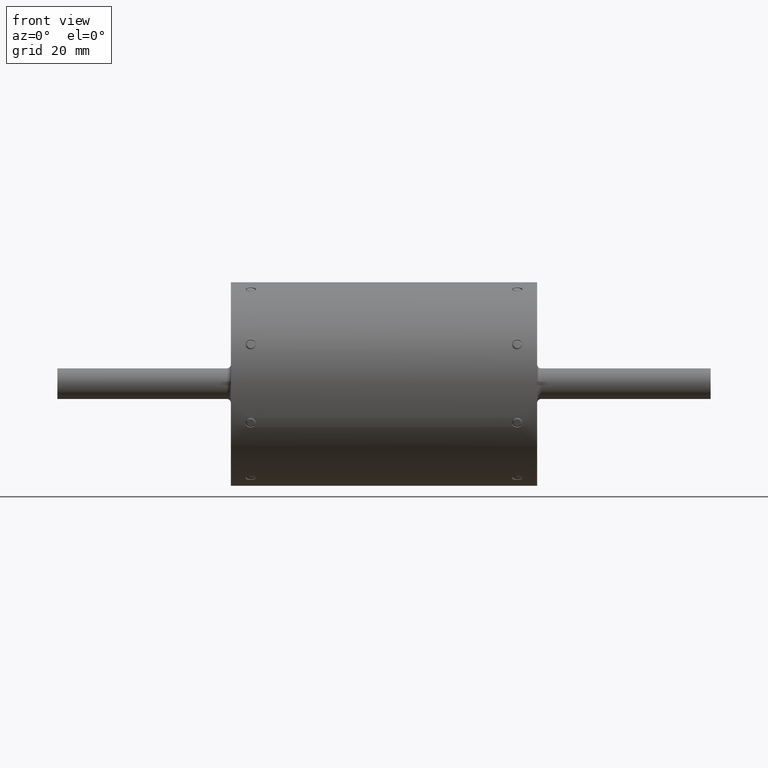
[diagram: clean part render]
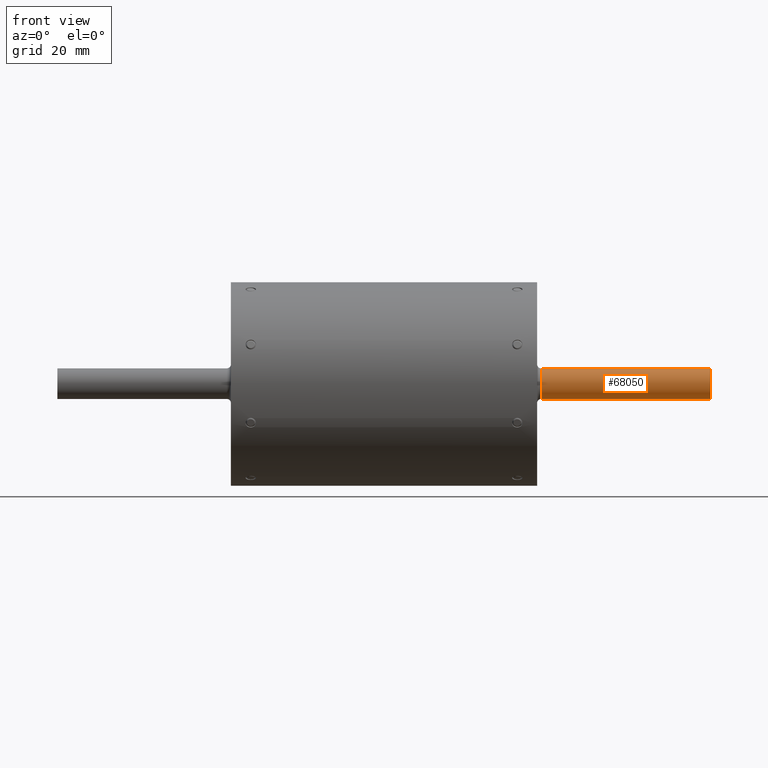
[diagram: same view with one face highlighted and labeled with its STEP entity id]
A machine part, front view. The second image highlights one B-rep face of the part: STEP entity #68050.
In plain terms, the highlighted cylindrical surface (edge-blend (fillet) strip) has radius 4.7625 mm, axis along (-1, -0, 0).
Its self-contained STEP definition (entity closure, byte-faithful):
#3465 = EDGE_CURVE ( 'NONE', #107281, #77818, #126179, .T. ) ;
#10051 = CARTESIAN_POINT ( 'NONE',  ( 3.800000000000000300, -0.8125000000000003300, 0.1874999999999384400 ) ) ;
#13008 = CARTESIAN_POINT ( 'NONE',  ( 3.800000000000000300, -0.8125000000000003300, -6.165011542038567300E-014 ) ) ;
#13610 = DIRECTION ( 'NONE',  ( 1.000000000000000000, 6.718675002655119100E-017, -1.023891520009880200E-016 ) ) ;
#15200 = VERTEX_POINT ( 'NONE', #99012 ) ;
#17283 = DIRECTION ( 'NONE',  ( 0.0000000000000000000, -1.000000000000000000, 0.0000000000000000000 ) ) ;
#18193 = CARTESIAN_POINT ( 'NONE',  ( 5.875000000000000000, -0.8125000000000001100, -0.1875000000000616500 ) ) ;
#31084 = VECTOR ( 'NONE', #95616, 39.37007874015748100 ) ;
#32317 = ORIENTED_EDGE ( 'NONE', *, *, #84460, .F. ) ;
#39329 = ORIENTED_EDGE ( 'NONE', *, *, #119446, .F. ) ;
#47327 = AXIS2_PLACEMENT_3D ( 'NONE', #13008, #13610, #17283 ) ;
#56110 = CARTESIAN_POINT ( 'NONE',  ( 3.800000000000000300, -0.8125000000000003300, -0.1875000000000615900 ) ) ;
#57678 = LINE ( 'NONE', #73028, #83145 ) ;
#60923 = DIRECTION ( 'NONE',  ( -1.000000000000000000, -6.718675002655119100E-017, 1.023891520009880200E-016 ) ) ;
#62835 = CARTESIAN_POINT ( 'NONE',  ( 5.875000000000000000, -0.8125000000000001100, -6.186257291078773100E-014 ) ) ;
#64041 = CYLINDRICAL_SURFACE ( 'NONE', #65917, 0.1874999999999999700 ) ;
#65917 = AXIS2_PLACEMENT_3D ( 'NONE', #104088, #60923, #126374 ) ;
#66465 = ORIENTED_EDGE ( 'NONE', *, *, #139652, .T. ) ;
#68050 = ADVANCED_FACE ( 'NONE', ( #77622 ), #64041, .T. ) ;
#70014 = AXIS2_PLACEMENT_3D ( 'NONE', #62835, #138612, #73764 ) ;
#73028 = CARTESIAN_POINT ( 'NONE',  ( 5.875000000000000000, -0.8125000000000001100, 0.1874999999999383800 ) ) ;
#73568 = CIRCLE ( 'NONE', #70014, 0.1874999999999999700 ) ;
#73764 = DIRECTION ( 'NONE',  ( 0.0000000000000000000, 1.000000000000000000, 0.0000000000000000000 ) ) ;
#77622 = FACE_OUTER_BOUND ( 'NONE', #120006, .T. ) ;
#77818 = VERTEX_POINT ( 'NONE', #56110 ) ;
#83145 = VECTOR ( 'NONE', #126573, 39.37007874015748100 ) ;
#84460 = EDGE_CURVE ( 'NONE', #15200, #104650, #73568, .T. ) ;
#85238 = CARTESIAN_POINT ( 'NONE',  ( 5.875000000000000000, -0.8125000000000001100, -0.1875000000000616500 ) ) ;
#91067 = ORIENTED_EDGE ( 'NONE', *, *, #3465, .T. ) ;
#95616 = DIRECTION ( 'NONE',  ( -1.000000000000000000, -6.718675002655119100E-017, 1.023891520009880200E-016 ) ) ;
#99012 = CARTESIAN_POINT ( 'NONE',  ( 5.875000000000000000, -0.8125000000000001100, 0.1874999999999383800 ) ) ;
#104088 = CARTESIAN_POINT ( 'NONE',  ( 5.875000000000000000, -0.8125000000000001100, -6.186257291078773100E-014 ) ) ;
#104650 = VERTEX_POINT ( 'NONE', #18193 ) ;
#107281 = VERTEX_POINT ( 'NONE', #10051 ) ;
#114267 = LINE ( 'NONE', #85238, #31084 ) ;
#119446 = EDGE_CURVE ( 'NONE', #104650, #77818, #114267, .T. ) ;
#120006 = EDGE_LOOP ( 'NONE', ( #66465, #91067, #39329, #32317 ) ) ;
#126179 = CIRCLE ( 'NONE', #47327, 0.1874999999999999700 ) ;
#126374 = DIRECTION ( 'NONE',  ( 0.0000000000000000000, -1.000000000000000000, 0.0000000000000000000 ) ) ;
#126573 = DIRECTION ( 'NONE',  ( -1.000000000000000000, -6.718675002655119100E-017, 1.023891520009880200E-016 ) ) ;
#138612 = DIRECTION ( 'NONE',  ( 1.000000000000000000, 6.718675002655119100E-017, -1.023891520009880200E-016 ) ) ;
#139652 = EDGE_CURVE ( 'NONE', #15200, #107281, #57678, .T. ) ;